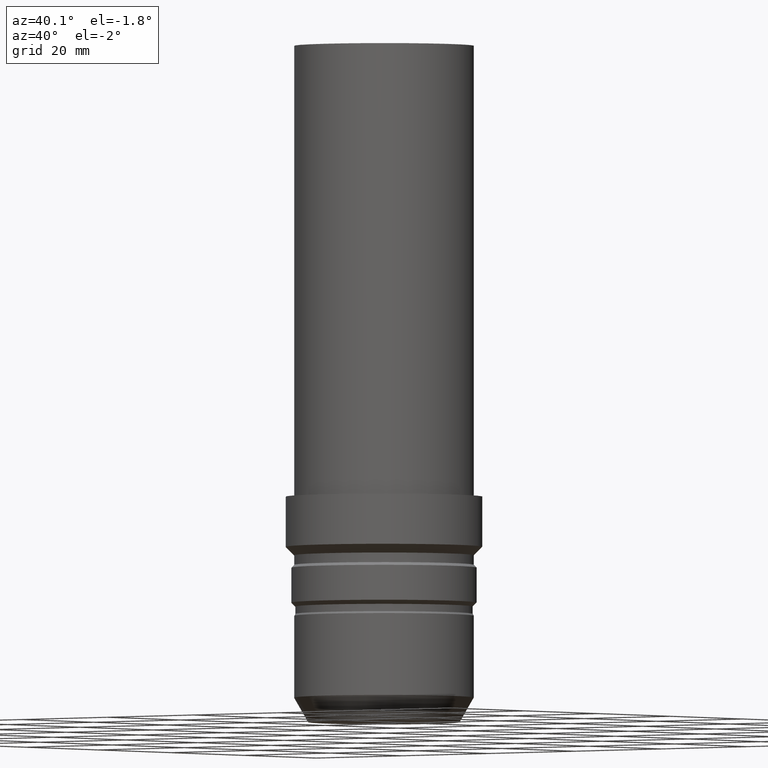
[diagram: clean part render]
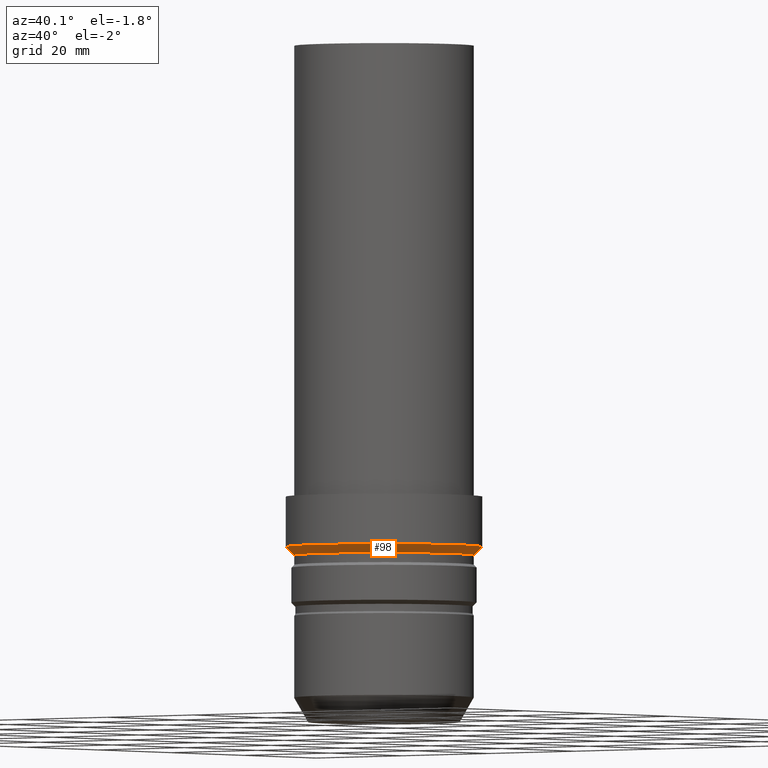
[diagram: same view with one face highlighted and labeled with its STEP entity id]
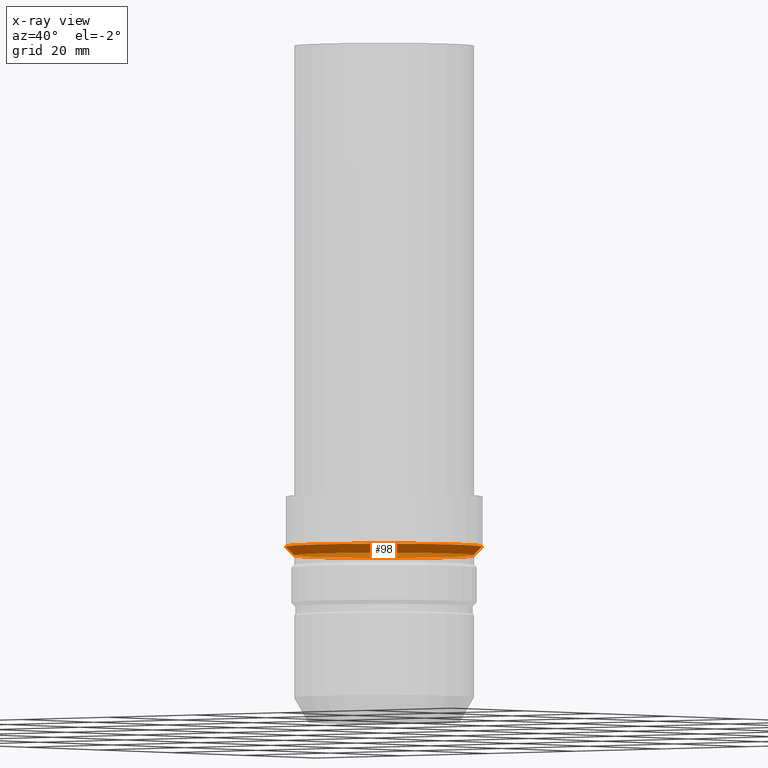
[diagram: x-ray of the same camera — body ghosted, the highlighted face saturated]
A machine part, auxiliary view. The second image highlights one B-rep face of the part: STEP entity #98.
The next image is the same camera in x-ray: the body ghosted, the highlighted face saturated — about 31% of this face is hidden behind the body in this view.
In plain terms, the highlighted conical surface has half-angle 45 deg.
Its self-contained STEP definition (entity closure, byte-faithful):
#98=ADVANCED_FACE('Unnamed[1]',(#210,#211),#212,.T.);
#111=EDGE_CURVE('Unnamed[1]',#232,#232,#233,.T.);
#116=EDGE_CURVE('Unnamed[1]',#239,#239,#240,.T.);
#210=FACE_BOUND('',#344,.T.);
#211=FACE_BOUND('',#345,.T.);
#212=CONICAL_SURFACE('',#346,16.7500000000001,0.785398163397431);
#232=VERTEX_POINT('',#371);
#233=CIRCLE('',#372,17.5);
#239=VERTEX_POINT('',#380);
#240=CIRCLE('',#381,16.0000000000002);
#344=EDGE_LOOP('',(#469));
#345=EDGE_LOOP('',(#470));
#346=AXIS2_PLACEMENT_3D('',#471,#472,#473);
#371=CARTESIAN_POINT('',(-1.90432577267406E-015,17.5000000000001,31.0999999999989));
#372=AXIS2_PLACEMENT_3D('',#495,#496,#497);
#380=CARTESIAN_POINT('',(-1.81247726273802E-015,16.0000000000002,29.5999999999989));
#381=AXIS2_PLACEMENT_3D('',#503,#504,#505);
#469=ORIENTED_EDGE('',*,*,#116,.F.);
#470=ORIENTED_EDGE('',*,*,#111,.T.);
#471=CARTESIAN_POINT('',(-1.85840151770604E-015,5.63861477842581E-014,30.3499999999989));
#472=DIRECTION('',(-6.12323399573677E-017,1.85786318893773E-015,1.0));
#473=DIRECTION('',(1.08934157648545E-031,1.0,-1.85786318893773E-015));
#495=CARTESIAN_POINT('',(-1.90432577267407E-015,5.77795451759614E-014,31.0999999999989));
#496=DIRECTION('',(6.12323399573676E-017,-1.85786318893773E-015,-1.0));
#497=DIRECTION('',(1.08934157648545E-031,1.0,-1.85786318893773E-015));
#503=CARTESIAN_POINT('',(-1.81247726273802E-015,5.49927503925549E-014,29.599999999999));
#504=DIRECTION('',(6.12323399573677E-017,-1.85786318893773E-015,-1.0));
#505=DIRECTION('',(1.08934157648545E-031,1.0,-1.85786318893773E-015));